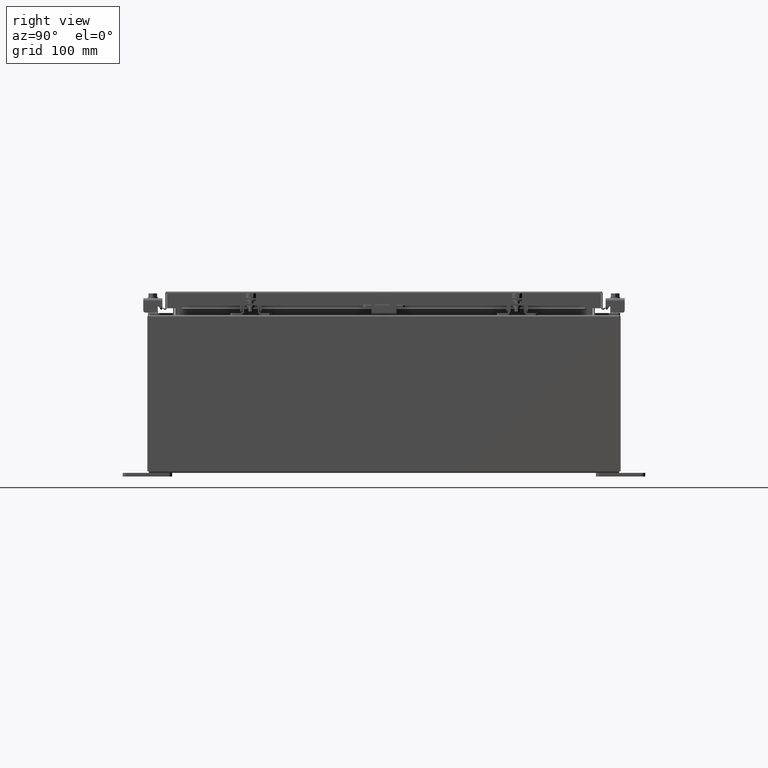
[diagram: clean part render]
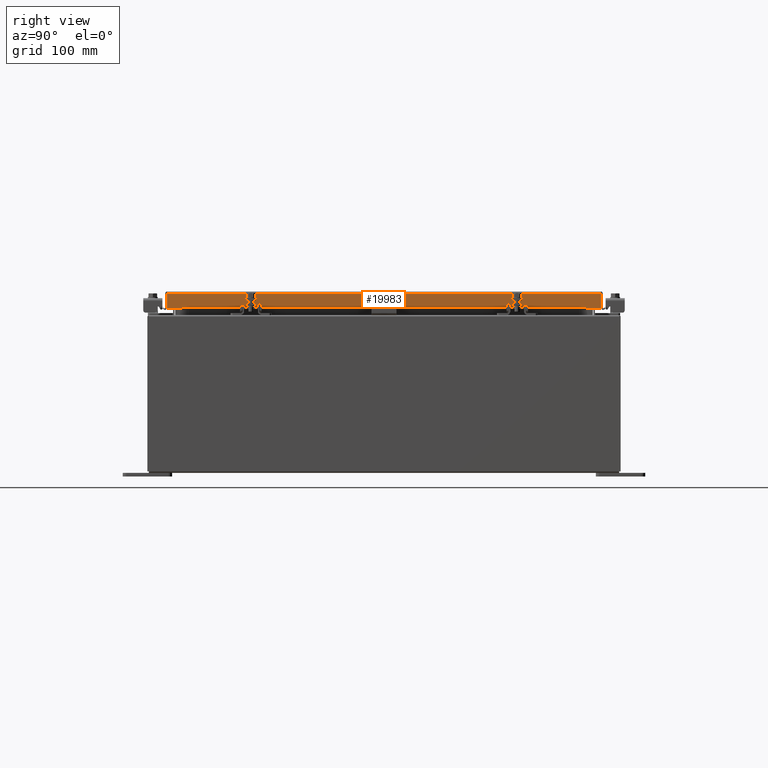
[diagram: same view with one face highlighted and labeled with its STEP entity id]
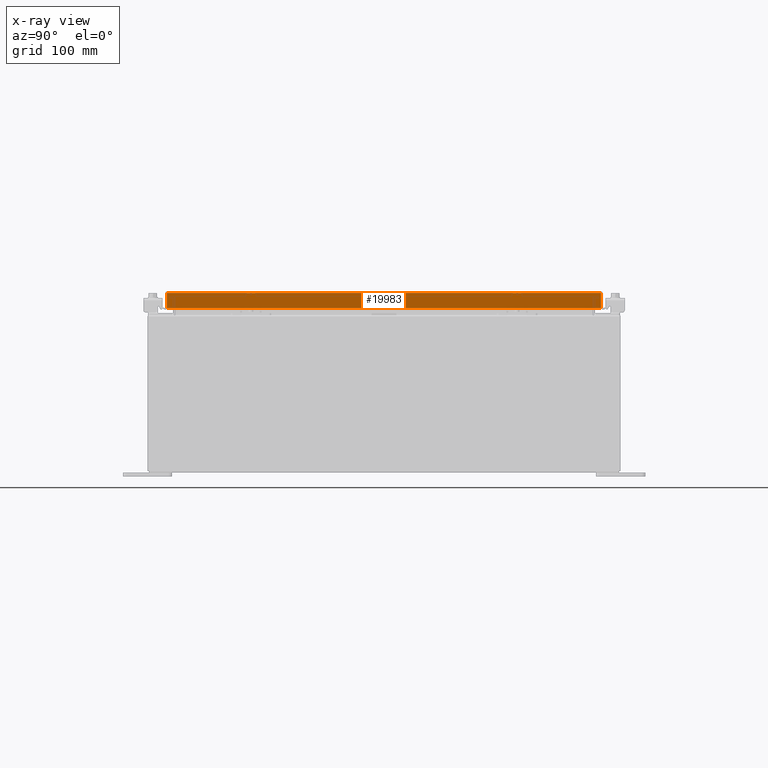
[diagram: x-ray of the same camera — body ghosted, the highlighted face saturated]
A machine part, right view. The second image highlights one B-rep face of the part: STEP entity #19983.
The next image is the same camera in x-ray: the body ghosted, the highlighted face saturated — about 0% of this face is hidden behind the body in this view.
In plain terms, the highlighted planar face has unit normal (1, 0, 0).
Its self-contained STEP definition (entity closure, byte-faithful):
#483 = VERTEX_POINT ( 'NONE', #644 ) ;
#644 = CARTESIAN_POINT ( 'NONE',  ( 11.07799999999999400, 10.25515786437626900, -0.8500000000000010900 ) ) ;
#653 = ORIENTED_EDGE ( 'NONE', *, *, #1623, .F. ) ;
#908 = VERTEX_POINT ( 'NONE', #1023 ) ;
#1023 = CARTESIAN_POINT ( 'NONE',  ( 11.07799999999999800, 11.00515786437627200, -0.8499999999999996400 ) ) ;
#1117 = CARTESIAN_POINT ( 'NONE',  ( 11.07799999999999600, 11.00515786437626700, 1.083369833690287600E-013 ) ) ;
#1623 = EDGE_CURVE ( 'NONE', #908, #483, #6486, .T. ) ;
#1740 = CARTESIAN_POINT ( 'NONE',  ( 11.07799999999999400, -10.25515786437626400, -0.8500000000000010900 ) ) ;
#1818 = EDGE_CURVE ( 'NONE', #483, #24874, #2563, .T. ) ;
#2428 = PLANE ( 'NONE',  #5756 ) ;
#2563 = LINE ( 'NONE', #19969, #26869 ) ;
#3569 = CARTESIAN_POINT ( 'NONE',  ( 11.07799999999999800, -11.09400000000000100, -0.8499999999999996400 ) ) ;
#4356 = DIRECTION ( 'NONE',  ( 0.0000000000000000000, -1.000000000000000000, 0.0000000000000000000 ) ) ;
#4604 = CARTESIAN_POINT ( 'NONE',  ( 11.07799999999999600, -11.00515786437626900, -0.07469999999999978000 ) ) ;
#4695 = ORIENTED_EDGE ( 'NONE', *, *, #25790, .T. ) ;
#4826 = LINE ( 'NONE', #1117, #31487 ) ;
#4947 = DIRECTION ( 'NONE',  ( 2.818880942772360100E-015, 0.0000000000000000000, -1.000000000000000000 ) ) ;
#5756 = AXIS2_PLACEMENT_3D ( 'NONE', #7329, #19909, #4947 ) ;
#6486 = LINE ( 'NONE', #23902, #25704 ) ;
#6636 = LINE ( 'NONE', #3569, #11724 ) ;
#7329 = CARTESIAN_POINT ( 'NONE',  ( 11.07799999999999600, 0.0000000000000000000, 3.148837674004377800E-014 ) ) ;
#7683 = CARTESIAN_POINT ( 'NONE',  ( 11.07799999999999800, -11.00515786437626400, -0.8499999999999996400 ) ) ;
#8724 = EDGE_CURVE ( 'NONE', #908, #29216, #4826, .T. ) ;
#8787 = ORIENTED_EDGE ( 'NONE', *, *, #8724, .T. ) ;
#9100 = VERTEX_POINT ( 'NONE', #7683 ) ;
#9373 = EDGE_CURVE ( 'NONE', #9100, #32243, #19225, .T. ) ;
#11724 = VECTOR ( 'NONE', #28518, 39.37007874015748100 ) ;
#12132 = DIRECTION ( 'NONE',  ( -2.818880942772360100E-015, -6.982962677686267500E-015, 1.000000000000000000 ) ) ;
#12204 = EDGE_CURVE ( 'NONE', #24874, #9100, #6636, .T. ) ;
#12901 = CARTESIAN_POINT ( 'NONE',  ( 11.07799999999999600, -11.00515786437626900, -0.08770000000000007000 ) ) ;
#17216 = EDGE_LOOP ( 'NONE', ( #19894, #27484, #19010, #653, #8787, #4695 ) ) ;
#18304 = DIRECTION ( 'NONE',  ( 0.0000000000000000000, -1.000000000000000000, 0.0000000000000000000 ) ) ;
#18762 = CARTESIAN_POINT ( 'NONE',  ( 11.07799999999999600, 0.0000000000000000000, -0.08770000000000007000 ) ) ;
#19010 = ORIENTED_EDGE ( 'NONE', *, *, #1818, .F. ) ;
#19225 = LINE ( 'NONE', #4604, #31042 ) ;
#19617 = LINE ( 'NONE', #18762, #25558 ) ;
#19894 = ORIENTED_EDGE ( 'NONE', *, *, #9373, .F. ) ;
#19909 = DIRECTION ( 'NONE',  ( 1.000000000000000000, 0.0000000000000000000, 2.818880942772360100E-015 ) ) ;
#19969 = CARTESIAN_POINT ( 'NONE',  ( 11.07799999999999400, 10.25515786437627200, -0.8500000000000010900 ) ) ;
#19983 = ADVANCED_FACE ( 'NONE', ( #23185 ), #2428, .T. ) ;
#23185 = FACE_OUTER_BOUND ( 'NONE', #17216, .T. ) ;
#23351 = DIRECTION ( 'NONE',  ( -2.818880942772360100E-015, -6.982962677686267500E-015, 1.000000000000000000 ) ) ;
#23902 = CARTESIAN_POINT ( 'NONE',  ( 11.07799999999999800, -11.09400000000000100, -0.8499999999999996400 ) ) ;
#24874 = VERTEX_POINT ( 'NONE', #1740 ) ;
#25558 = VECTOR ( 'NONE', #26252, 39.37007874015748100 ) ;
#25566 = CARTESIAN_POINT ( 'NONE',  ( 11.07799999999999600, 11.00515786437626900, -0.08770000000000007000 ) ) ;
#25704 = VECTOR ( 'NONE', #4356, 39.37007874015748100 ) ;
#25790 = EDGE_CURVE ( 'NONE', #29216, #32243, #19617, .T. ) ;
#26252 = DIRECTION ( 'NONE',  ( 0.0000000000000000000, -1.000000000000000000, 0.0000000000000000000 ) ) ;
#26869 = VECTOR ( 'NONE', #18304, 39.37007874015748100 ) ;
#27484 = ORIENTED_EDGE ( 'NONE', *, *, #12204, .F. ) ;
#28518 = DIRECTION ( 'NONE',  ( 0.0000000000000000000, -1.000000000000000000, 0.0000000000000000000 ) ) ;
#29216 = VERTEX_POINT ( 'NONE', #25566 ) ;
#31042 = VECTOR ( 'NONE', #12132, 39.37007874015748100 ) ;
#31487 = VECTOR ( 'NONE', #23351, 39.37007874015748100 ) ;
#32243 = VERTEX_POINT ( 'NONE', #12901 ) ;